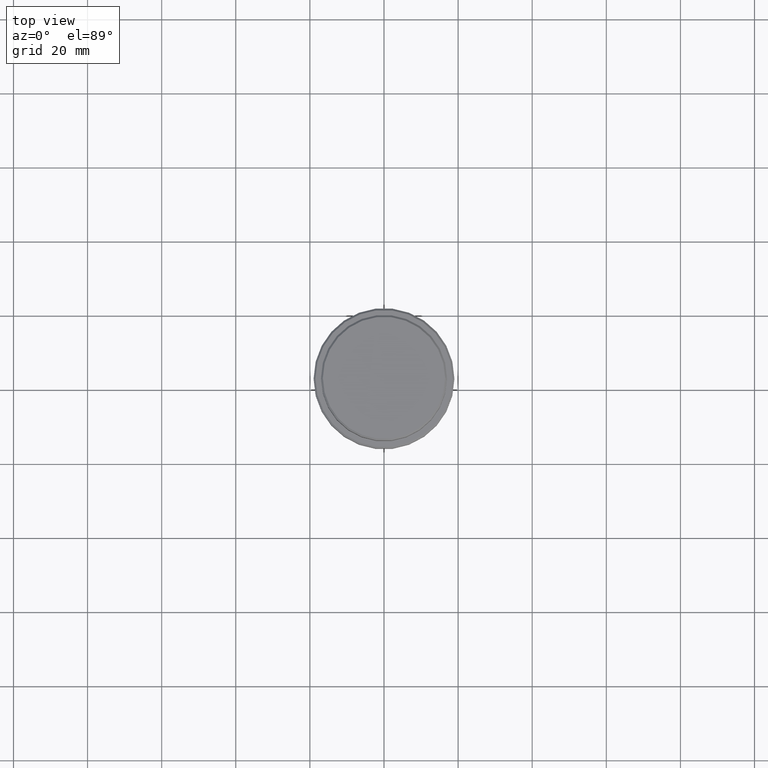
[diagram: clean part render]
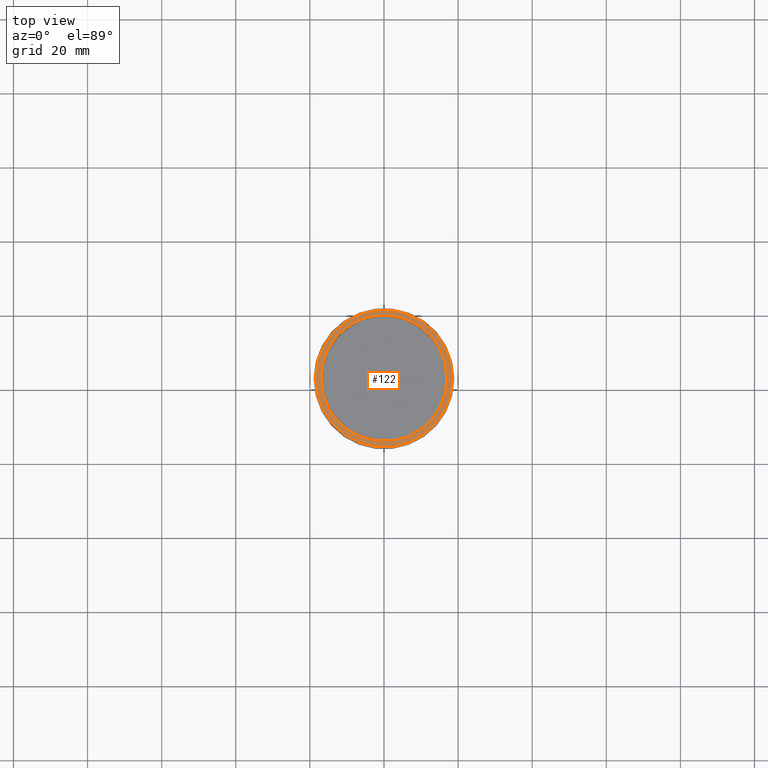
[diagram: same view with one face highlighted and labeled with its STEP entity id]
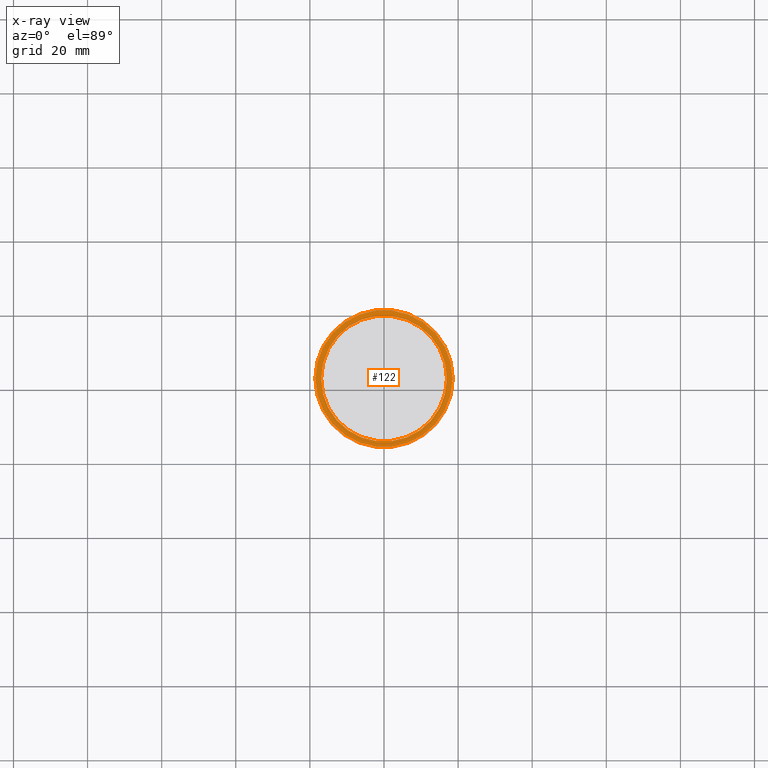
[diagram: x-ray of the same camera — body ghosted, the highlighted face saturated]
A machine part, top view. The second image highlights one B-rep face of the part: STEP entity #122.
The next image is the same camera in x-ray: the body ghosted, the highlighted face saturated — about 0% of this face is hidden behind the body in this view.
In plain terms, the highlighted planar face has unit normal (0, -0, 1).
Its self-contained STEP definition (entity closure, byte-faithful):
#35 = CIRCLE ( 'NONE', #830, 16.99999999999997513 ) ;
#122 = ADVANCED_FACE ( 'NONE', ( #1274, #180 ), #495, .T. ) ;
#149 = CARTESIAN_POINT ( 'NONE',  ( 0.000000000000000000, 0.000000000000000000, -9.999999999999998224 ) ) ;
#180 = FACE_BOUND ( 'NONE', #347, .T. ) ;
#203 = CARTESIAN_POINT ( 'NONE',  ( 16.99999999999997513, 0.000000000000000000, -9.999999999999998224 ) ) ;
#204 = CIRCLE ( 'NONE', #690, 18.50000000000001776 ) ;
#244 = DIRECTION ( 'NONE',  ( 0.000000000000000000, 0.000000000000000000, -1.000000000000000000 ) ) ;
#282 = EDGE_CURVE ( 'NONE', #1061, #853, #35, .T. ) ;
#289 = DIRECTION ( 'NONE',  ( -0.000000000000000000, -0.000000000000000000, 1.000000000000000000 ) ) ;
#322 = AXIS2_PLACEMENT_3D ( 'NONE', #1219, #244, #905 ) ;
#330 = DIRECTION ( 'NONE',  ( 1.000000000000000000, 0.000000000000000000, 0.000000000000000000 ) ) ;
#335 = CARTESIAN_POINT ( 'NONE',  ( 0.000000000000000000, 0.000000000000000000, -9.999999999999998224 ) ) ;
#347 = EDGE_LOOP ( 'NONE', ( #552, #539 ) ) ;
#355 = EDGE_CURVE ( 'NONE', #407, #1380, #204, .T. ) ;
#403 = DIRECTION ( 'NONE',  ( 1.000000000000000000, 0.000000000000000000, 0.000000000000000000 ) ) ;
#407 = VERTEX_POINT ( 'NONE', #903 ) ;
#431 = ORIENTED_EDGE ( 'NONE', *, *, #867, .T. ) ;
#442 = DIRECTION ( 'NONE',  ( 1.000000000000000000, 0.000000000000000000, 0.000000000000000000 ) ) ;
#495 = PLANE ( 'NONE',  #808 ) ;
#499 = CARTESIAN_POINT ( 'NONE',  ( -16.99999999999997513, 2.081899558550497519E-15, -9.999999999999998224 ) ) ;
#515 = CARTESIAN_POINT ( 'NONE',  ( -18.50000000000001776, 0.000000000000000000, -9.999999999999998224 ) ) ;
#539 = ORIENTED_EDGE ( 'NONE', *, *, #973, .T. ) ;
#552 = ORIENTED_EDGE ( 'NONE', *, *, #282, .T. ) ;
#604 = DIRECTION ( 'NONE',  ( 1.000000000000000000, 0.000000000000000000, 0.000000000000000000 ) ) ;
#620 = CARTESIAN_POINT ( 'NONE',  ( 0.000000000000000000, 16.49999999999997158, -9.999999999999998224 ) ) ;
#654 = CIRCLE ( 'NONE', #721, 18.50000000000001776 ) ;
#678 = DIRECTION ( 'NONE',  ( 0.000000000000000000, 0.000000000000000000, -1.000000000000000000 ) ) ;
#690 = AXIS2_PLACEMENT_3D ( 'NONE', #335, #1302, #330 ) ;
#721 = AXIS2_PLACEMENT_3D ( 'NONE', #149, #289, #604 ) ;
#722 = DIRECTION ( 'NONE',  ( 0.000000000000000000, -0.000000000000000000, 1.000000000000000000 ) ) ;
#808 = AXIS2_PLACEMENT_3D ( 'NONE', #620, #722, #403 ) ;
#830 = AXIS2_PLACEMENT_3D ( 'NONE', #1193, #678, #442 ) ;
#853 = VERTEX_POINT ( 'NONE', #499 ) ;
#858 = CIRCLE ( 'NONE', #322, 16.99999999999997513 ) ;
#867 = EDGE_CURVE ( 'NONE', #1380, #407, #654, .T. ) ;
#903 = CARTESIAN_POINT ( 'NONE',  ( 18.50000000000001776, 2.296212748401286789E-15, -9.999999999999998224 ) ) ;
#905 = DIRECTION ( 'NONE',  ( 1.000000000000000000, 0.000000000000000000, 0.000000000000000000 ) ) ;
#973 = EDGE_CURVE ( 'NONE', #853, #1061, #858, .T. ) ;
#1061 = VERTEX_POINT ( 'NONE', #203 ) ;
#1193 = CARTESIAN_POINT ( 'NONE',  ( 0.000000000000000000, 0.000000000000000000, -9.999999999999998224 ) ) ;
#1214 = ORIENTED_EDGE ( 'NONE', *, *, #355, .T. ) ;
#1219 = CARTESIAN_POINT ( 'NONE',  ( 0.000000000000000000, 0.000000000000000000, -9.999999999999998224 ) ) ;
#1274 = FACE_OUTER_BOUND ( 'NONE', #1287, .T. ) ;
#1287 = EDGE_LOOP ( 'NONE', ( #431, #1214 ) ) ;
#1302 = DIRECTION ( 'NONE',  ( -0.000000000000000000, -0.000000000000000000, 1.000000000000000000 ) ) ;
#1380 = VERTEX_POINT ( 'NONE', #515 ) ;